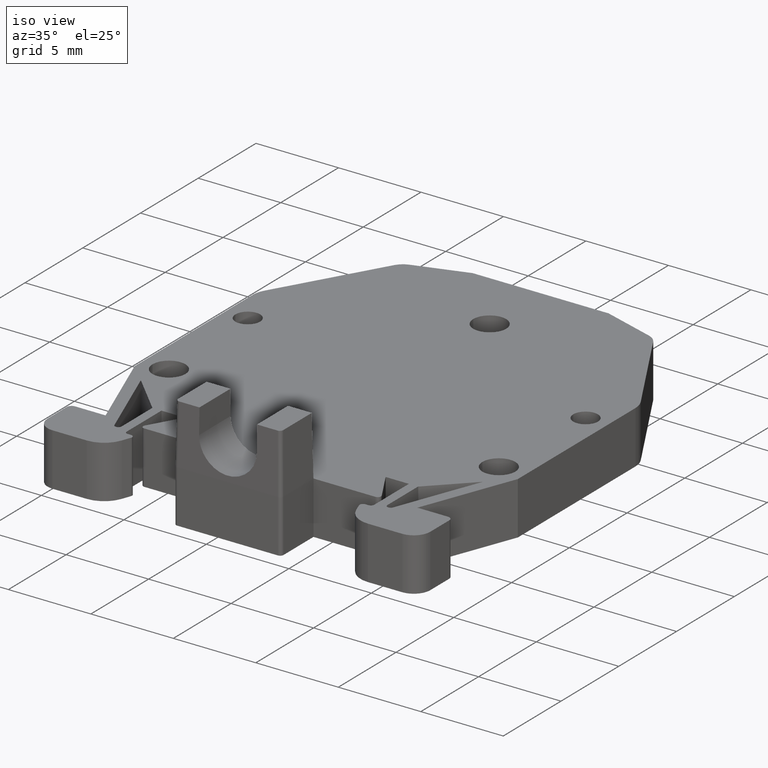
[diagram: clean part render]
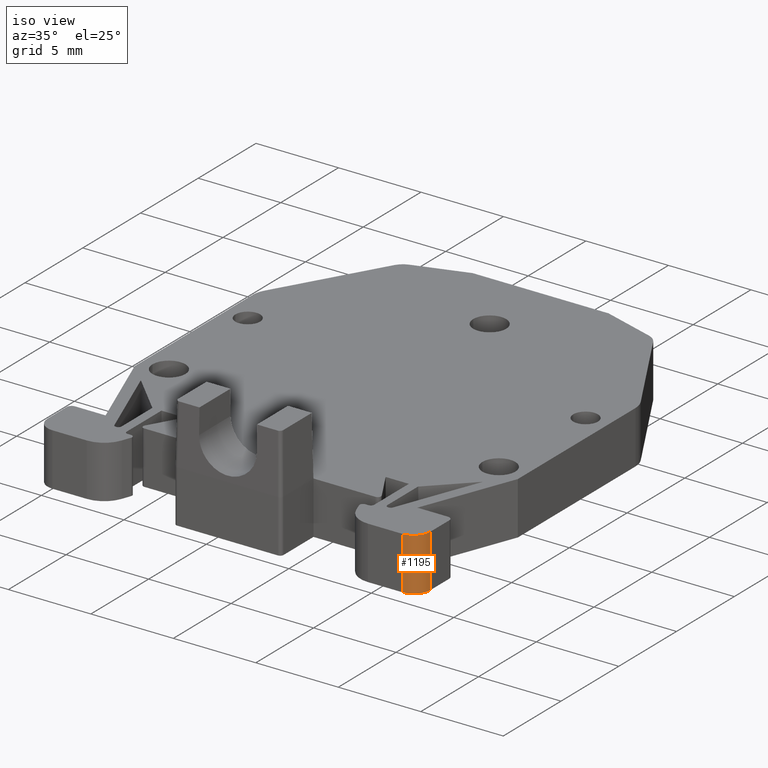
[diagram: same view with one face highlighted and labeled with its STEP entity id]
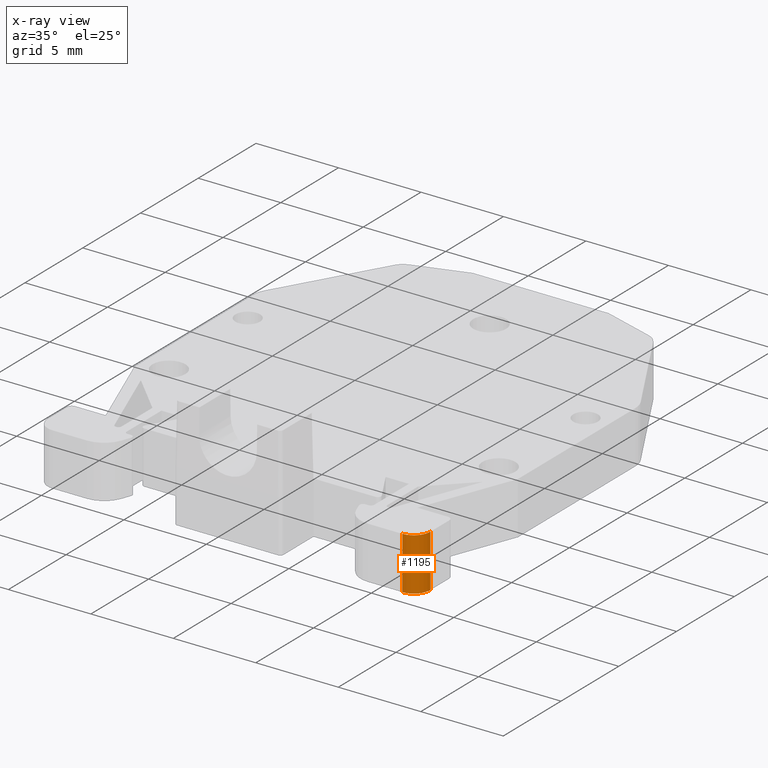
[diagram: x-ray of the same camera — body ghosted, the highlighted face saturated]
A machine part, iso view. The second image highlights one B-rep face of the part: STEP entity #1195.
The next image is the same camera in x-ray: the body ghosted, the highlighted face saturated — about 0% of this face is hidden behind the body in this view.
In plain terms, the highlighted cylindrical surface (edge-blend (fillet) strip) has radius 1 mm, axis along (0, 0, 1).
Its self-contained STEP definition (entity closure, byte-faithful):
#285 = CARTESIAN_POINT ( 'NONE',  ( 241.8779864925319900, 461.0003766282159700, -5.945817934377599200 ) ) ;
#286 = DIRECTION ( 'NONE',  ( 1.000000000000000000, 0.0000000000000000000, 0.0000000000000000000 ) ) ;
#288 = FACE_OUTER_BOUND ( 'NONE', #1769, .T. ) ;
#294 = DIRECTION ( 'NONE',  ( 0.0000000000000000000, 0.0000000000000000000, 1.000000000000000000 ) ) ;
#305 = CYLINDRICAL_SURFACE ( 'NONE', #1395, 1.000000000000000900 ) ;
#598 = CARTESIAN_POINT ( 'NONE',  ( 241.8779864925320200, 460.0003766282161500, 8.439999999999999500 ) ) ;
#668 = CARTESIAN_POINT ( 'NONE',  ( 241.8779864925319900, 460.0003766282160300, 11.64000000000000100 ) ) ;
#692 = CARTESIAN_POINT ( 'NONE',  ( 242.8779864925319900, 461.0003766282159700, 8.439999999999999500 ) ) ;
#727 = CARTESIAN_POINT ( 'NONE',  ( 242.8779864925319900, 461.0003766282159700, 11.64000000000000100 ) ) ;
#891 = EDGE_CURVE ( 'NONE', #1584, #1559, #2423, .T. ) ;
#942 = EDGE_CURVE ( 'NONE', #1584, #1637, #2665, .T. ) ;
#950 = EDGE_CURVE ( 'NONE', #1637, #1631, #2493, .T. ) ;
#971 = EDGE_CURVE ( 'NONE', #1559, #1631, #2732, .T. ) ;
#1195 = ADVANCED_FACE ( 'NONE', ( #288 ), #305, .T. ) ;
#1395 = AXIS2_PLACEMENT_3D ( 'NONE', #285, #294, #286 ) ;
#1559 = VERTEX_POINT ( 'NONE', #598 ) ;
#1584 = VERTEX_POINT ( 'NONE', #692 ) ;
#1631 = VERTEX_POINT ( 'NONE', #668 ) ;
#1637 = VERTEX_POINT ( 'NONE', #727 ) ;
#1769 = EDGE_LOOP ( 'NONE', ( #3377, #3354, #3394, #3364 ) ) ;
#2423 = CIRCLE ( 'NONE', #2424, 1.000000000000000900 ) ;
#2424 = AXIS2_PLACEMENT_3D ( 'NONE', #3441, #3443, #3444 ) ;
#2481 = VECTOR ( 'NONE', #2657, 1000.000000000000000 ) ;
#2493 = CIRCLE ( 'NONE', #2503, 1.000000000000000900 ) ;
#2503 = AXIS2_PLACEMENT_3D ( 'NONE', #2684, #2683, #2692 ) ;
#2523 = VECTOR ( 'NONE', #2718, 1000.000000000000000 ) ;
#2656 = CARTESIAN_POINT ( 'NONE',  ( 242.8779864925319900, 461.0003766282159700, -5.945817934377599200 ) ) ;
#2657 = DIRECTION ( 'NONE',  ( 0.0000000000000000000, 0.0000000000000000000, 1.000000000000000000 ) ) ;
#2665 = LINE ( 'NONE', #2656, #2481 ) ;
#2683 = DIRECTION ( 'NONE',  ( -0.0000000000000000000, -0.0000000000000000000, -1.000000000000000000 ) ) ;
#2684 = CARTESIAN_POINT ( 'NONE',  ( 241.8779864925319900, 461.0003766282159700, 11.64000000000000100 ) ) ;
#2692 = DIRECTION ( 'NONE',  ( 1.000000000000000000, 0.0000000000000000000, 0.0000000000000000000 ) ) ;
#2718 = DIRECTION ( 'NONE',  ( -0.0000000000000000000, 0.0000000000000000000, 1.000000000000000000 ) ) ;
#2732 = LINE ( 'NONE', #2759, #2523 ) ;
#2759 = CARTESIAN_POINT ( 'NONE',  ( 241.8779864925319900, 460.0003766282161500, -5.945817934377599200 ) ) ;
#3354 = ORIENTED_EDGE ( 'NONE', *, *, #971, .F. ) ;
#3364 = ORIENTED_EDGE ( 'NONE', *, *, #942, .T. ) ;
#3377 = ORIENTED_EDGE ( 'NONE', *, *, #950, .T. ) ;
#3394 = ORIENTED_EDGE ( 'NONE', *, *, #891, .F. ) ;
#3441 = CARTESIAN_POINT ( 'NONE',  ( 241.8779864925319900, 461.0003766282159700, 8.439999999999999500 ) ) ;
#3443 = DIRECTION ( 'NONE',  ( -0.0000000000000000000, -0.0000000000000000000, -1.000000000000000000 ) ) ;
#3444 = DIRECTION ( 'NONE',  ( 1.000000000000000000, 0.0000000000000000000, 0.0000000000000000000 ) ) ;